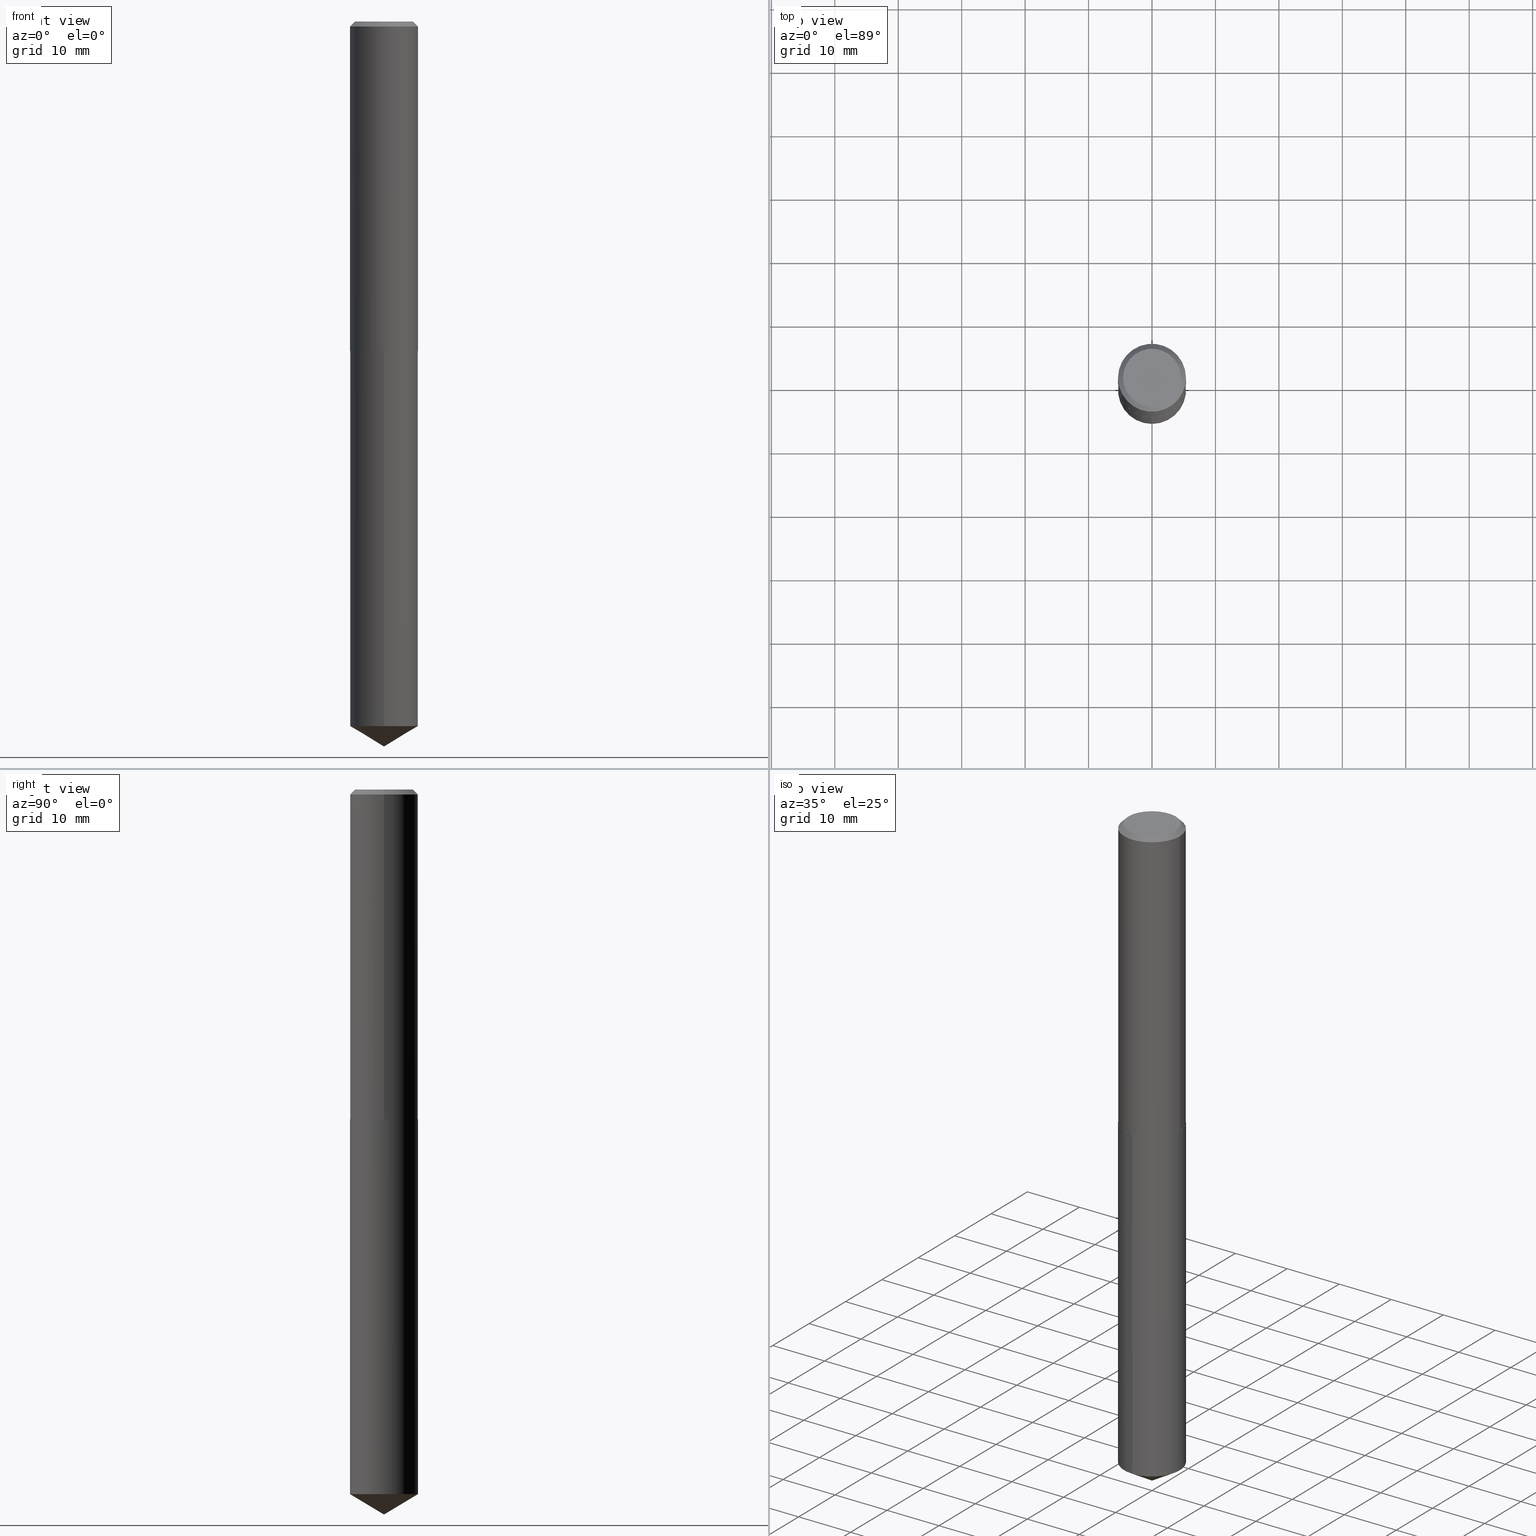
[diagram: canonical four-view strip — front | top / right | iso, engineering-drawing reading convention]
A machine part, canonical four-view strip (front | top / right | iso — engineering-drawing reading convention). The complete STEP part file that produces these views, byte-faithful:
ISO-10303-21;
HEADER;
FILE_DESCRIPTION (( 'STEP AP203' ),
    '1' );
FILE_NAME ('51127.STEP',
    '2024-04-22T18:33:07',
    ( '' ),
    ( '' ),
    'SwSTEP 2.0',
    'SolidWorks 2023',
    '' );
FILE_SCHEMA (( 'CONFIG_CONTROL_DESIGN' ));
ENDSEC;

DATA;
#1 = LINE ( 'NONE', #167, #223 ) ;
#2 = FACE_OUTER_BOUND ( 'NONE', #159, .T. ) ;
#3 = EDGE_CURVE ( 'NONE', #141, #115, #196, .T. ) ;
#4 = AXIS2_PLACEMENT_3D ( 'NONE', #318, #292, #10 ) ;
#5 = CARTESIAN_POINT ( 'NONE',  ( 5.005630099380355887E-29, -7.146713152478034511E-15, -2.046899999999999942 ) ) ;
#6 = COORDINATED_UNIVERSAL_TIME_OFFSET ( 5, 0, .BEHIND. ) ;
#7 = CARTESIAN_POINT ( 'NONE',  ( -1.473055976857811069E-15, -0.2109500000000152919, -4.373248452416135912 ) ) ;
#8 = EDGE_CURVE ( 'NONE', #144, #141, #328, .T. ) ;
#9 = EDGE_CURVE ( 'NONE', #248, #378, #193, .T. ) ;
#10 = DIRECTION ( 'NONE',  ( 1.000000000000000000, -6.982962677686269077E-15, 0.000000000000000000 ) ) ;
#11 = VECTOR ( 'NONE', #316, 39.37007874015748143 ) ;
#12 = FACE_OUTER_BOUND ( 'NONE', #371, .T. ) ;
#13 = APPROVAL_STATUS ( 'not_yet_approved' ) ;
#14 = ADVANCED_FACE ( 'NONE', ( #2 ), #199, .T. ) ;
#15 = PRODUCT_RELATED_PRODUCT_CATEGORY ( 'detail', '', ( #68 ) ) ;
#16 = LINE ( 'NONE', #376, #88 ) ;
#17 = ORIENTED_EDGE ( 'NONE', *, *, #8, .T. ) ;
#18 = ORIENTED_EDGE ( 'NONE', *, *, #70, .T. ) ;
#19 = CIRCLE ( 'NONE', #301, 0.2109499999999999986 ) ;
#20 = PRODUCT_DEFINITION_FORMATION_WITH_SPECIFIED_SOURCE ( 'ANY', '', #68, .NOT_KNOWN. ) ;
#21 = PRODUCT_DEFINITION ( 'UNKNOWN', '', #20, #352 ) ;
#22 = DIRECTION ( 'NONE',  ( 1.000000000000000000, 0.000000000000000000, 0.000000000000000000 ) ) ;
#23 = PLANE ( 'NONE',  #289 ) ;
#24 = DIRECTION ( 'NONE',  ( 1.000000000000000000, -6.982962677686265922E-15, 4.876199800713087836E-29 ) ) ;
#25 = CONICAL_SURFACE ( 'NONE', #4, 0.2109500000000002207, 0.7853981633980972044 ) ;
#26 = EDGE_CURVE ( 'NONE', #141, #148, #215, .T. ) ;
#27 = FACE_OUTER_BOUND ( 'NONE', #319, .T. ) ;
#28 = CARTESIAN_POINT ( 'NONE',  ( 5.005630099380355887E-29, -7.146713152478034511E-15, -2.046899999999999942 ) ) ;
#29 = CARTESIAN_POINT ( 'NONE',  ( 1.100458722092953583E-28, -1.571170122342283263E-14, -4.500000000000000000 ) ) ;
#30 = AXIS2_PLACEMENT_3D ( 'NONE', #191, #382, #24 ) ;
#31 = AXIS2_PLACEMENT_3D ( 'NONE', #134, #286, #202 ) ;
#32 = CIRCLE ( 'NONE', #137, 0.2109499999999999986 ) ;
#33 = CYLINDRICAL_SURFACE ( 'NONE', #261, 0.2109499999999999986 ) ;
#34 = EDGE_CURVE ( 'NONE', #48, #248, #62, .T. ) ;
#35 = DIRECTION ( 'NONE',  ( 1.000000000000000000, -6.982962677686266711E-15, 0.000000000000000000 ) ) ;
#36 = VECTOR ( 'NONE', #256, 39.37007874015748143 ) ;
#37 = LOCAL_TIME ( 14, 33, 7.000000000000000000, #56 ) ;
#38 =( LENGTH_UNIT ( ) NAMED_UNIT ( * ) SI_UNIT ( $, .METRE. ) );
#39 = APPROVAL ( #373, 'UNSPECIFIED' ) ;
#40 = PERSON_AND_ORGANIZATION ( #127, #165 ) ;
#41 = ORIENTED_EDGE ( 'NONE', *, *, #131, .T. ) ;
#42 = CARTESIAN_POINT ( 'NONE',  ( -0.2109500000000001096, 1.498889901085932121E-15, -1.037649357289272942E-29 ) ) ;
#43 = PERSON_AND_ORGANIZATION ( #127, #165 ) ;
#44 = CARTESIAN_POINT ( 'NONE',  ( 0.2109499999999999986, -1.556330844468753687E-15, -0.03125000000000020123 ) ) ;
#45 = DIRECTION ( 'NONE',  ( -5.985567269335949957E-15, -0.8571673007021116675, 0.5150380749100553768 ) ) ;
#46 = CONICAL_SURFACE ( 'NONE', #186, 0.2109500000000002207, 0.7853981633980972044 ) ;
#47 = LOCAL_TIME ( 14, 33, 7.000000000000000000, #351 ) ;
#48 = VERTEX_POINT ( 'NONE', #279 ) ;
#49 = ADVANCED_FACE ( 'NONE', ( #121 ), #23, .F. ) ;
#50 = APPROVAL_ROLE ( '' ) ;
#51 = PERSON_AND_ORGANIZATION_ROLE ( 'design_owner' ) ;
#52 = ORIENTED_EDGE ( 'NONE', *, *, #354, .T. ) ;
#53 = CALENDAR_DATE ( 2024, 22, 4 ) ;
#54 = APPROVAL_STATUS ( 'not_yet_approved' ) ;
#55 = EDGE_LOOP ( 'NONE', ( #346, #317, #315, #205 ) ) ;
#56 = COORDINATED_UNIVERSAL_TIME_OFFSET ( 5, 0, .BEHIND. ) ;
#57 = ADVANCED_FACE ( 'NONE', ( #277 ), #387, .F. ) ;
#58 = ORIENTED_EDGE ( 'NONE', *, *, #26, .F. ) ;
#59 = DIRECTION ( 'NONE',  ( -0.7071067811865453523, 2.468850131082234184E-15, -0.7071067811865496822 ) ) ;
#60 = DIRECTION ( 'NONE',  ( -2.445468806185136597E-29, 3.491481338843145583E-15, 1.000000000000000000 ) ) ;
#61 = DIRECTION ( 'NONE',  ( -2.445408296409078411E-29, 3.491567992286463657E-15, 1.000000000000000000 ) ) ;
#62 = CIRCLE ( 'NONE', #30, 0.1796999999999999986 ) ;
#63 = CC_DESIGN_DATE_AND_TIME_ASSIGNMENT ( #118, #267, ( #21 ) ) ;
#64 = DIRECTION ( 'NONE',  ( -2.445468806185136597E-29, 3.491481338843145583E-15, 1.000000000000000000 ) ) ;
#65 = AXIS2_PLACEMENT_3D ( 'NONE', #327, #388, #126 ) ;
#66 = DIRECTION ( 'NONE',  ( -0.7071067811870063169, 7.493145998872012346E-15, 0.7071067811860887176 ) ) ;
#67 = CARTESIAN_POINT ( 'NONE',  ( 0.000000000000000000, 0.000000000000000000, 0.000000000000000000 ) ) ;
#68 = PRODUCT ( '51127', '51127', '', ( #334 ) ) ;
#69 = ORIENTED_EDGE ( 'NONE', *, *, #309, .T. ) ;
#70 = EDGE_CURVE ( 'NONE', #248, #48, #71, .T. ) ;
#71 = CIRCLE ( 'NONE', #360, 0.1796999999999999986 ) ;
#72 = CC_DESIGN_SECURITY_CLASSIFICATION ( #278, ( #20 ) ) ;
#73 = EDGE_LOOP ( 'NONE', ( #300, #116, #58 ) ) ;
#74 = APPLICATION_CONTEXT ( 'configuration controlled 3d designs of mechanical parts and assemblies' ) ;
#75 = ORIENTED_EDGE ( 'NONE', *, *, #172, .F. ) ;
#76 = ORIENTED_EDGE ( 'NONE', *, *, #201, .T. ) ;
#77 = ORIENTED_EDGE ( 'NONE', *, *, #359, .F. ) ;
#78 = CALENDAR_DATE ( 2024, 22, 4 ) ;
#79 = AXIS2_PLACEMENT_3D ( 'NONE', #323, #61, #92 ) ;
#80 = CARTESIAN_POINT ( 'NONE',  ( 1.498889901085981031E-15, 0.2109499999999928654, -2.046900000000000830 ) ) ;
#81 = DIRECTION ( 'NONE',  ( -2.445408296409078411E-29, 3.491567992286463657E-15, 1.000000000000000000 ) ) ;
#82 = DIRECTION ( 'NONE',  ( 2.445408296409077850E-29, -3.491567992286463657E-15, -1.000000000000000000 ) ) ;
#83 = DIRECTION ( 'NONE',  ( -2.445468806185136597E-29, 3.491481338843145583E-15, 1.000000000000000000 ) ) ;
#84 = ORIENTED_EDGE ( 'NONE', *, *, #348, .F. ) ;
#85 = EDGE_CURVE ( 'NONE', #378, #154, #310, .T. ) ;
#86 = DIRECTION ( 'NONE',  ( -6.982962677686266711E-15, -1.000000000000000000, 3.468864327941578437E-15 ) ) ;
#87 = ORIENTED_EDGE ( 'NONE', *, *, #3, .T. ) ;
#88 = VECTOR ( 'NONE', #45, 39.37007874015748143 ) ;
#89 = LOCAL_TIME ( 14, 33, 7.000000000000000000, #147 ) ;
#90 = CARTESIAN_POINT ( 'NONE',  ( -1.473055976857867670E-15, -0.2109500000000071318, -2.046899999999999054 ) ) ;
#91 = DIRECTION ( 'NONE',  ( -2.445408296409078411E-29, 3.491567992286463657E-15, 1.000000000000000000 ) ) ;
#92 = DIRECTION ( 'NONE',  ( -6.982962677686265922E-15, -1.000000000000000000, 2.590043132177542855E-15 ) ) ;
#93 = CC_DESIGN_PERSON_AND_ORGANIZATION_ASSIGNMENT ( #342, #51, ( #68 ) ) ;
#94 = DIRECTION ( 'NONE',  ( 0.7071067811870063169, -2.468850131087062801E-15, 0.7071067811860887176 ) ) ;
#95 = CARTESIAN_POINT ( 'NONE',  ( 1.498889901086038617E-15, 0.2109499999999928654, -2.046900000000000830 ) ) ;
#96 = APPLICATION_CONTEXT ( 'configuration controlled 3d designs of mechanical parts and assemblies' ) ;
#97 = AXIS2_PLACEMENT_3D ( 'NONE', #200, #197, #99 ) ;
#98 = LOCAL_TIME ( 14, 33, 7.000000000000000000, #6 ) ;
#99 = DIRECTION ( 'NONE',  ( -6.982962677686265922E-15, -1.000000000000000000, 3.885064698266314085E-15 ) ) ;
#100 = EDGE_CURVE ( 'NONE', #148, #141, #19, .T. ) ;
#101 = MANIFOLD_SOLID_BREP ( 'Body-Move/Copy2[1]', #264 ) ;
#102 = CARTESIAN_POINT ( 'NONE',  ( 5.005630099380354766E-29, -7.146713152478032933E-15, -2.046899999999999498 ) ) ;
#103 = VECTOR ( 'NONE', #66, 39.37007874015748143 ) ;
#104 = APPROVAL_PERSON_ORGANIZATION ( #43, #288, #249 ) ;
#105 = ORIENTED_EDGE ( 'NONE', *, *, #131, .F. ) ;
#106 = DATE_AND_TIME ( #53, #47 ) ;
#107 = ORIENTED_EDGE ( 'NONE', *, *, #280, .F. ) ;
#108 = EDGE_CURVE ( 'NONE', #182, #194, #294, .T. ) ;
#109 = PERSON_AND_ORGANIZATION_ROLE ( 'classification_officer' ) ;
#110 = CARTESIAN_POINT ( 'NONE',  ( 0.2109500000000002207, -8.618023388666532939E-15, -2.046400000000000219 ) ) ;
#111 = ORIENTED_EDGE ( 'NONE', *, *, #216, .T. ) ;
#112 = DATE_TIME_ROLE ( 'classification_date' ) ;
#113 = ORIENTED_EDGE ( 'NONE', *, *, #348, .T. ) ;
#114 = CIRCLE ( 'NONE', #176, 0.2104500000000002202 ) ;
#115 = VERTEX_POINT ( 'NONE', #95 ) ;
#116 = ORIENTED_EDGE ( 'NONE', *, *, #172, .T. ) ;
#117 = DIRECTION ( 'NONE',  ( 0.7071067811865453523, -7.319954787623248157E-15, -0.7071067811865496822 ) ) ;
#118 = DATE_AND_TIME ( #384, #233 ) ;
#119 =( CONVERSION_BASED_UNIT ( 'INCH', #150 ) LENGTH_UNIT ( ) NAMED_UNIT ( #228 ) );
#120 = PERSON_AND_ORGANIZATION ( #127, #165 ) ;
#121 = FACE_OUTER_BOUND ( 'NONE', #341, .T. ) ;
#122 = CARTESIAN_POINT ( 'NONE',  ( -0.2109500000000002207, -5.646077510722680294E-15, -2.046400000000000219 ) ) ;
#123 = DATE_AND_TIME ( #162, #98 ) ;
#124 = CIRCLE ( 'NONE', #344, 0.2109500000000002207 ) ;
#125 = CARTESIAN_POINT ( 'NONE',  ( 5.005630099380355887E-29, -7.146713152478034511E-15, -2.046899999999999942 ) ) ;
#126 = DIRECTION ( 'NONE',  ( -1.000000000000000000, 6.982962677686265922E-15, -4.876176775795935793E-29 ) ) ;
#127 = PERSON ( 'UNSPECIFIED', 'UNSPECIFIED', 'UNSPECIFIED', ('UNSPECIFIED'), ('UNSPECIFIED'), ('UNSPECIFIED') ) ;
#128 = CARTESIAN_POINT ( 'NONE',  ( 7.642090019328600035E-31, -1.091087918388489897E-16, -0.03125000000000020123 ) ) ;
#129 = ORIENTED_EDGE ( 'NONE', *, *, #229, .T. ) ;
#130 = CARTESIAN_POINT ( 'NONE',  ( 7.642090019328600035E-31, -1.091087918388489897E-16, -0.03125000000000020123 ) ) ;
#131 = EDGE_CURVE ( 'NONE', #184, #252, #124, .T. ) ;
#132 = CONICAL_SURFACE ( 'NONE', #153, 0.2109499999999999986, 0.7853981633974452814 ) ;
#133 = DIRECTION ( 'NONE',  ( -2.445408296409078411E-29, 3.491567992286463657E-15, 1.000000000000000000 ) ) ;
#134 = CARTESIAN_POINT ( 'NONE',  ( 5.004407364977263646E-29, -7.144967411808613796E-15, -2.046400000000000219 ) ) ;
#135 = PERSON_AND_ORGANIZATION ( #127, #165 ) ;
#136 = AXIS2_PLACEMENT_3D ( 'NONE', #102, #64, #35 ) ;
#137 = AXIS2_PLACEMENT_3D ( 'NONE', #381, #190, #251 ) ;
#138 = EDGE_CURVE ( 'NONE', #115, #353, #335, .T. ) ;
#139 = DIRECTION ( 'NONE',  ( -2.445468806185136597E-29, 3.491481338843145583E-15, 1.000000000000000000 ) ) ;
#140 = ORIENTED_EDGE ( 'NONE', *, *, #138, .F. ) ;
#141 = VERTEX_POINT ( 'NONE', #235 ) ;
#142 = ADVANCED_FACE ( 'NONE', ( #258 ), #291, .T. ) ;
#143 = AXIS2_PLACEMENT_3D ( 'NONE', #5, #287, #332 ) ;
#144 = VERTEX_POINT ( 'NONE', #168 ) ;
#145 = DIRECTION ( 'NONE',  ( 1.000000000000000000, -6.982962677686266711E-15, 0.000000000000000000 ) ) ;
#146 = ORIENTED_EDGE ( 'NONE', *, *, #201, .F. ) ;
#147 = COORDINATED_UNIVERSAL_TIME_OFFSET ( 5, 0, .BEHIND. ) ;
#148 = VERTEX_POINT ( 'NONE', #7 ) ;
#149 = LINE ( 'NONE', #44, #283 ) ;
#150 = LENGTH_MEASURE_WITH_UNIT ( LENGTH_MEASURE( 0.02539999999999999897 ), #38 );
#151 = LINE ( 'NONE', #271, #11 ) ;
#152 = AXIS2_PLACEMENT_3D ( 'NONE', #125, #82, #218 ) ;
#153 = AXIS2_PLACEMENT_3D ( 'NONE', #386, #285, #304 ) ;
#154 = VERTEX_POINT ( 'NONE', #169 ) ;
#155 = DIRECTION ( 'NONE',  ( -2.438088387897960049E-29, 3.491481338843145188E-15, 1.000000000000000000 ) ) ;
#156 = AXIS2_PLACEMENT_3D ( 'NONE', #181, #276, #324 ) ;
#157 = DIRECTION ( 'NONE',  ( 1.000000000000000000, -6.982962677686265922E-15, 4.876176775795935793E-29 ) ) ;
#158 = APPROVAL_PERSON_ORGANIZATION ( #214, #39, #245 ) ;
#159 = EDGE_LOOP ( 'NONE', ( #350, #129, #220, #208 ) ) ;
#160 = ADVANCED_FACE ( 'NONE', ( #234 ), #46, .T. ) ;
#161 = DIRECTION ( 'NONE',  ( -2.445468806185136597E-29, 3.491481338843145583E-15, 1.000000000000000000 ) ) ;
#162 = CALENDAR_DATE ( 2024, 22, 4 ) ;
#163 = FACE_OUTER_BOUND ( 'NONE', #321, .T. ) ;
#164 = VECTOR ( 'NONE', #59, 39.37007874015748143 ) ;
#165 = ORGANIZATION ( 'UNSPECIFIED', 'UNSPECIFIED', '' ) ;
#166 = COORDINATED_UNIVERSAL_TIME_OFFSET ( 5, 0, .BEHIND. ) ;
#167 = CARTESIAN_POINT ( 'NONE',  ( 0.2109500000000002207, -8.618023388666532939E-15, -2.046400000000000219 ) ) ;
#168 = CARTESIAN_POINT ( 'NONE',  ( 1.100433733384085159E-28, -1.571205596528908744E-14, -4.500000000000000000 ) ) ;
#169 = CARTESIAN_POINT ( 'NONE',  ( 0.2109499999999999986, -1.582164768696767060E-15, -0.03125000000000020123 ) ) ;
#170 = CIRCLE ( 'NONE', #232, 0.2109499999999999986 ) ;
#171 = CARTESIAN_POINT ( 'NONE',  ( 5.004407364977263646E-29, -7.144967411808613796E-15, -2.046400000000000219 ) ) ;
#172 = EDGE_CURVE ( 'NONE', #144, #148, #16, .T. ) ;
#173 = EDGE_LOOP ( 'NONE', ( #240, #113, #76, #338 ) ) ;
#174 = SHAPE_DEFINITION_REPRESENTATION ( #237, #224 ) ;
#175 = CARTESIAN_POINT ( 'NONE',  ( -0.1796999999999999986, 1.309392789099645492E-15, 9.613477373217108669E-19 ) ) ;
#176 = AXIS2_PLACEMENT_3D ( 'NONE', #365, #259, #145 ) ;
#177 = APPROVAL_DATE_TIME ( #123, #336 ) ;
#178 = AXIS2_PLACEMENT_3D ( 'NONE', #325, #83, #222 ) ;
#179 = EDGE_LOOP ( 'NONE', ( #18, #254 ) ) ;
#180 = EDGE_LOOP ( 'NONE', ( #111, #298, #105, #246 ) ) ;
#181 = CARTESIAN_POINT ( 'NONE',  ( -8.527145599015831561E-28, 1.217514281885756788E-13, 34.87007874015748143 ) ) ;
#182 = VERTEX_POINT ( 'NONE', #345 ) ;
#183 = DIRECTION ( 'NONE',  ( -2.445468806185136597E-29, 3.491481338843145583E-15, 1.000000000000000000 ) ) ;
#184 = VERTEX_POINT ( 'NONE', #110 ) ;
#185 = UNCERTAINTY_MEASURE_WITH_UNIT (LENGTH_MEASURE( 1.000000000000000082E-05 ), #119, 'distance_accuracy_value', 'NONE');
#186 = AXIS2_PLACEMENT_3D ( 'NONE', #343, #183, #239 ) ;
#187 = VECTOR ( 'NONE', #81, 39.37007874015748143 ) ;
#188 = ORIENTED_EDGE ( 'NONE', *, *, #211, .T. ) ;
#189 = DIRECTION ( 'NONE',  ( 0.000000000000000000, 0.000000000000000000, 1.000000000000000000 ) ) ;
#190 = DIRECTION ( 'NONE',  ( -2.445408296409078411E-29, 3.491567992286463657E-15, 1.000000000000000000 ) ) ;
#191 = CARTESIAN_POINT ( 'NONE',  ( -2.350945903538833148E-47, 3.356527685029141157E-33, 9.613477373306770338E-19 ) ) ;
#192 = FACE_OUTER_BOUND ( 'NONE', #179, .T. ) ;
#193 = LINE ( 'NONE', #275, #164 ) ;
#194 = VERTEX_POINT ( 'NONE', #212 ) ;
#195 = APPROVAL_PERSON_ORGANIZATION ( #120, #336, #50 ) ;
#196 = LINE ( 'NONE', #80, #36 ) ;
#197 = DIRECTION ( 'NONE',  ( -2.445408296409078411E-29, 3.491567992286463657E-15, 1.000000000000000000 ) ) ;
#198 = DIRECTION ( 'NONE',  ( 1.000000000000000000, -6.982962677686269077E-15, 0.000000000000000000 ) ) ;
#199 = CONICAL_SURFACE ( 'NONE', #242, 0.2109499999999999986, 0.7853981633974452814 ) ;
#200 = CARTESIAN_POINT ( 'NONE',  ( 5.005630099380355887E-29, -7.146713152478034511E-15, -2.046899999999999942 ) ) ;
#201 = EDGE_CURVE ( 'NONE', #184, #154, #151, .T. ) ;
#202 = DIRECTION ( 'NONE',  ( 1.000000000000000000, -6.982962677686269077E-15, 0.000000000000000000 ) ) ;
#203 = AXIS2_PLACEMENT_3D ( 'NONE', #128, #253, #357 ) ;
#204 = ADVANCED_FACE ( 'NONE', ( #12 ), #25, .T. ) ;
#205 = ORIENTED_EDGE ( 'NONE', *, *, #85, .T. ) ;
#206 = SECURITY_CLASSIFICATION_LEVEL ( 'unclassified' ) ;
#207 = DIRECTION ( 'NONE',  ( 1.000000000000000000, -6.982962677686266711E-15, 4.876176775795935793E-29 ) ) ;
#208 = ORIENTED_EDGE ( 'NONE', *, *, #9, .F. ) ;
#209 = DATE_AND_TIME ( #78, #89 ) ;
#210 = FACE_OUTER_BOUND ( 'NONE', #238, .T. ) ;
#211 = EDGE_CURVE ( 'NONE', #252, #378, #337, .T. ) ;
#212 = CARTESIAN_POINT ( 'NONE',  ( 0.2104500000000002202, -8.616277647997109069E-15, -2.046899999999999498 ) ) ;
#213 =( NAMED_UNIT ( * ) SI_UNIT ( $, .STERADIAN. ) SOLID_ANGLE_UNIT ( ) );
#214 = PERSON_AND_ORGANIZATION ( #127, #165 ) ;
#215 = CIRCLE ( 'NONE', #79, 0.2109499999999999986 ) ;
#216 = EDGE_CURVE ( 'NONE', #194, #182, #114, .T. ) ;
#217 = CC_DESIGN_APPROVAL ( #288, ( #20 ) ) ;
#218 = DIRECTION ( 'NONE',  ( 6.982962677686265922E-15, 1.000000000000000000, -3.491567992286463657E-15 ) ) ;
#219 = APPLICATION_PROTOCOL_DEFINITION ( 'international standard', 'config_control_design', 1994, #74 ) ;
#220 = ORIENTED_EDGE ( 'NONE', *, *, #280, .T. ) ;
#221 = DIRECTION ( 'NONE',  ( 1.000000000000000000, -6.982962677686266711E-15, 0.000000000000000000 ) ) ;
#222 = DIRECTION ( 'NONE',  ( 1.000000000000000000, -6.982962677686266711E-15, 4.876176775795935793E-29 ) ) ;
#223 = VECTOR ( 'NONE', #94, 39.37007874015748143 ) ;
#224 = ADVANCED_BREP_SHAPE_REPRESENTATION ( '51127', ( #101, #244, #225 ), #295 ) ;
#225 = AXIS2_PLACEMENT_3D ( 'NONE', #306, #189, #22 ) ;
#226 = DIRECTION ( 'NONE',  ( -6.982962677686265922E-15, -1.000000000000000000, 3.885064698266314085E-15 ) ) ;
#227 = FACE_OUTER_BOUND ( 'NONE', #73, .T. ) ;
#228 = DIMENSIONAL_EXPONENTS ( 1.000000000000000000, 0.000000000000000000, 0.000000000000000000, 0.000000000000000000, 0.000000000000000000, 0.000000000000000000, 0.000000000000000000 ) ;
#229 = EDGE_CURVE ( 'NONE', #48, #154, #149, .T. ) ;
#230 = PERSON_AND_ORGANIZATION_ROLE ( 'creator' ) ;
#231 = DIRECTION ( 'NONE',  ( -2.445408296409078411E-29, 3.491567992286463657E-15, 1.000000000000000000 ) ) ;
#232 = AXIS2_PLACEMENT_3D ( 'NONE', #356, #161, #221 ) ;
#233 = LOCAL_TIME ( 14, 33, 7.000000000000000000, #166 ) ;
#234 = FACE_OUTER_BOUND ( 'NONE', #180, .T. ) ;
#235 = CARTESIAN_POINT ( 'NONE',  ( 1.498889901086038420E-15, 0.2109499999999847886, -4.373248452416137688 ) ) ;
#236 = VECTOR ( 'NONE', #241, 39.37007874015748143 ) ;
#237 = PRODUCT_DEFINITION_SHAPE ( 'NONE', 'NONE',  #21 ) ;
#238 = EDGE_LOOP ( 'NONE', ( #75, #17, #374 ) ) ;
#239 = DIRECTION ( 'NONE',  ( 1.000000000000000000, -6.982962677686269077E-15, 0.000000000000000000 ) ) ;
#240 = ORIENTED_EDGE ( 'NONE', *, *, #211, .F. ) ;
#241 = DIRECTION ( 'NONE',  ( -2.445468806185136877E-29, 3.491481338843145188E-15, 1.000000000000000000 ) ) ;
#242 = AXIS2_PLACEMENT_3D ( 'NONE', #130, #362, #355 ) ;
#243 = ORIENTED_EDGE ( 'NONE', *, *, #3, .F. ) ;
#244 = MANIFOLD_SOLID_BREP ( 'Body-Move/Copy2[2]', #305 ) ;
#245 = APPROVAL_ROLE ( '' ) ;
#246 = ORIENTED_EDGE ( 'NONE', *, *, #309, .F. ) ;
#247 =( NAMED_UNIT ( * ) PLANE_ANGLE_UNIT ( ) SI_UNIT ( $, .RADIAN. ) );
#248 = VERTEX_POINT ( 'NONE', #175 ) ;
#249 = APPROVAL_ROLE ( '' ) ;
#250 = ADVANCED_FACE ( 'NONE', ( #210 ), #389, .T. ) ;
#251 = DIRECTION ( 'NONE',  ( -6.982962677686265922E-15, -1.000000000000000000, 3.885064698266314085E-15 ) ) ;
#252 = VERTEX_POINT ( 'NONE', #122 ) ;
#253 = DIRECTION ( 'NONE',  ( -2.445468806185136597E-29, 3.491481338843145583E-15, 1.000000000000000000 ) ) ;
#254 = ORIENTED_EDGE ( 'NONE', *, *, #34, .T. ) ;
#255 = VECTOR ( 'NONE', #307, 39.37007874015748854 ) ;
#256 = DIRECTION ( 'NONE',  ( -2.445408296409078411E-29, 3.491567992286463657E-15, 1.000000000000000000 ) ) ;
#257 = CC_DESIGN_APPROVAL ( #39, ( #278 ) ) ;
#258 = FACE_OUTER_BOUND ( 'NONE', #268, .T. ) ;
#259 = DIRECTION ( 'NONE',  ( -2.445468806185136597E-29, 3.491481338843145583E-15, 1.000000000000000000 ) ) ;
#260 = CARTESIAN_POINT ( 'NONE',  ( -0.2109499999999999986, -2.128148200737798736E-15, -0.03125000000000020123 ) ) ;
#261 = AXIS2_PLACEMENT_3D ( 'NONE', #28, #91, #226 ) ;
#262 = ORIENTED_EDGE ( 'NONE', *, *, #108, .T. ) ;
#263 = ORIENTED_EDGE ( 'NONE', *, *, #290, .F. ) ;
#264 = CLOSED_SHELL ( 'NONE', ( #142, #250, #329, #333, #57 ) ) ;
#265 = ORIENTED_EDGE ( 'NONE', *, *, #100, .T. ) ;
#266 = ORIENTED_EDGE ( 'NONE', *, *, #26, .T. ) ;
#267 = DATE_TIME_ROLE ( 'creation_date' ) ;
#268 = EDGE_LOOP ( 'NONE', ( #265, #87, #293, #77 ) ) ;
#269 = PERSON_AND_ORGANIZATION ( #127, #165 ) ;
#270 = CIRCLE ( 'NONE', #31, 0.2109500000000002207 ) ;
#271 = CARTESIAN_POINT ( 'NONE',  ( 0.2109500000000001096, -1.473055976857918748E-15, 1.028629490854153189E-29 ) ) ;
#272 = ORIENTED_EDGE ( 'NONE', *, *, #138, .T. ) ;
#273 = ADVANCED_FACE ( 'NONE', ( #192 ), #303, .F. ) ;
#274 = APPROVAL_DATE_TIME ( #106, #288 ) ;
#275 = CARTESIAN_POINT ( 'NONE',  ( -0.2109499999999999986, 1.363947185019068859E-15, -0.03125000000000020123 ) ) ;
#276 = DIRECTION ( 'NONE',  ( -2.445408296409078411E-29, 3.491567992286463657E-15, 1.000000000000000000 ) ) ;
#277 = FACE_OUTER_BOUND ( 'NONE', #372, .T. ) ;
#278 = SECURITY_CLASSIFICATION ( '', '', #206 ) ;
#279 = CARTESIAN_POINT ( 'NONE',  ( 0.1796999999999999986, -1.394581167334149153E-15, 9.613477373399407568E-19 ) ) ;
#280 = EDGE_CURVE ( 'NONE', #154, #378, #170, .T. ) ;
#281 = CC_DESIGN_PERSON_AND_ORGANIZATION_ASSIGNMENT ( #40, #109, ( #278 ) ) ;
#282 = ORIENTED_EDGE ( 'NONE', *, *, #108, .F. ) ;
#283 = VECTOR ( 'NONE', #117, 39.37007874015748143 ) ;
#284 = CC_DESIGN_PERSON_AND_ORGANIZATION_ASSIGNMENT ( #135, #230, ( #21 ) ) ;
#285 = DIRECTION ( 'NONE',  ( 2.445468806185136597E-29, -3.491481338843145583E-15, -1.000000000000000000 ) ) ;
#286 = DIRECTION ( 'NONE',  ( -2.445468806185136597E-29, 3.491481338843145583E-15, 1.000000000000000000 ) ) ;
#287 = DIRECTION ( 'NONE',  ( -2.445408296409078411E-29, 3.491567992286463657E-15, 1.000000000000000000 ) ) ;
#288 = APPROVAL ( #13, 'UNSPECIFIED' ) ;
#289 = AXIS2_PLACEMENT_3D ( 'NONE', #302, #155, #157 ) ;
#290 = EDGE_CURVE ( 'NONE', #182, #252, #358, .T. ) ;
#291 = CYLINDRICAL_SURFACE ( 'NONE', #97, 0.2109499999999999986 ) ;
#292 = DIRECTION ( 'NONE',  ( -2.445468806185136597E-29, 3.491481338843145583E-15, 1.000000000000000000 ) ) ;
#293 = ORIENTED_EDGE ( 'NONE', *, *, #354, .F. ) ;
#294 = CIRCLE ( 'NONE', #136, 0.2104500000000002202 ) ;
#295 =( GEOMETRIC_REPRESENTATION_CONTEXT ( 3 ) GLOBAL_UNCERTAINTY_ASSIGNED_CONTEXT ( ( #185 ) ) GLOBAL_UNIT_ASSIGNED_CONTEXT ( ( #119, #247, #213 ) ) REPRESENTATION_CONTEXT ( 'NONE', 'WORKASPACE' ) );
#296 = ORIENTED_EDGE ( 'NONE', *, *, #216, .F. ) ;
#297 = CC_DESIGN_PERSON_AND_ORGANIZATION_ASSIGNMENT ( #269, #339, ( #20 ) ) ;
#298 = ORIENTED_EDGE ( 'NONE', *, *, #290, .T. ) ;
#299 = CALENDAR_DATE ( 2024, 22, 4 ) ;
#300 = ORIENTED_EDGE ( 'NONE', *, *, #8, .F. ) ;
#301 = AXIS2_PLACEMENT_3D ( 'NONE', #314, #231, #313 ) ;
#302 = CARTESIAN_POINT ( 'NONE',  ( 6.861057420538922349E-29, -4.489635624214135306E-15, -2.046899999999999498 ) ) ;
#303 = PLANE ( 'NONE',  #65 ) ;
#304 = DIRECTION ( 'NONE',  ( -1.000000000000000000, 6.982962677686266711E-15, 0.000000000000000000 ) ) ;
#305 = CLOSED_SHELL ( 'NONE', ( #14, #367, #160, #49, #204, #383, #377, #273 ) ) ;
#306 = CARTESIAN_POINT ( 'NONE',  ( 0.000000000000000000, 0.000000000000000000, 0.000000000000000000 ) ) ;
#307 = DIRECTION ( 'NONE',  ( 6.090539988449787113E-15, 0.8571673007021152202, 0.5150380749100493816 ) ) ;
#308 = CYLINDRICAL_SURFACE ( 'NONE', #178, 0.2109500000000001096 ) ;
#309 = EDGE_CURVE ( 'NONE', #194, #184, #1, .T. ) ;
#310 = CIRCLE ( 'NONE', #203, 0.2109499999999999986 ) ;
#311 = CC_DESIGN_DATE_AND_TIME_ASSIGNMENT ( #209, #112, ( #278 ) ) ;
#312 = CARTESIAN_POINT ( 'NONE',  ( -8.527145599015831561E-28, 1.217514281885756788E-13, 34.87007874015748143 ) ) ;
#313 = DIRECTION ( 'NONE',  ( -6.982962677686265922E-15, -1.000000000000000000, 2.590043132177542855E-15 ) ) ;
#314 = CARTESIAN_POINT ( 'NONE',  ( 1.069450190525719533E-28, -1.526931694783936594E-14, -4.373248452416136800 ) ) ;
#315 = ORIENTED_EDGE ( 'NONE', *, *, #9, .T. ) ;
#316 = DIRECTION ( 'NONE',  ( -2.445468806185136877E-29, 3.491481338843145188E-15, 1.000000000000000000 ) ) ;
#317 = ORIENTED_EDGE ( 'NONE', *, *, #70, .F. ) ;
#318 = CARTESIAN_POINT ( 'NONE',  ( 5.004407364977263646E-29, -7.144967411808613796E-15, -2.046400000000000219 ) ) ;
#319 = EDGE_LOOP ( 'NONE', ( #41, #188, #107, #146 ) ) ;
#320 = APPROVAL_DATE_TIME ( #347, #39 ) ;
#321 = EDGE_LOOP ( 'NONE', ( #243, #266, #368, #140 ) ) ;
#322 = CONICAL_SURFACE ( 'NONE', #366, 65.52281426576873002, 1.029744258676656532 ) ;
#323 = CARTESIAN_POINT ( 'NONE',  ( 1.069450190525719533E-28, -1.526931694783936594E-14, -4.373248452416136800 ) ) ;
#324 = DIRECTION ( 'NONE',  ( -6.982962677686266711E-15, -1.000000000000000000, 3.468864327941578437E-15 ) ) ;
#325 = CARTESIAN_POINT ( 'NONE',  ( 0.000000000000000000, 0.000000000000000000, 0.000000000000000000 ) ) ;
#326 = CARTESIAN_POINT ( 'NONE',  ( -2.350945903538833148E-47, 3.356527685029141157E-33, 9.613477373306770338E-19 ) ) ;
#327 = CARTESIAN_POINT ( 'NONE',  ( -1.175472951769416574E-47, 1.678263842514570579E-33, 4.806738686653385169E-19 ) ) ;
#328 = LINE ( 'NONE', #29, #255 ) ;
#329 = ADVANCED_FACE ( 'NONE', ( #227 ), #322, .T. ) ;
#330 = CARTESIAN_POINT ( 'NONE',  ( -0.2109500000000002207, -5.646077510722680294E-15, -2.046400000000000219 ) ) ;
#331 = AXIS2_PLACEMENT_3D ( 'NONE', #67, #340, #207 ) ;
#332 = DIRECTION ( 'NONE',  ( -6.982962677686265922E-15, -1.000000000000000000, 3.885064698266314085E-15 ) ) ;
#333 = ADVANCED_FACE ( 'NONE', ( #163 ), #33, .T. ) ;
#334 = MECHANICAL_CONTEXT ( 'NONE', #74, 'mechanical' ) ;
#335 = CIRCLE ( 'NONE', #143, 0.2109499999999999986 ) ;
#336 = APPROVAL ( #54, 'UNSPECIFIED' ) ;
#337 = LINE ( 'NONE', #42, #236 ) ;
#338 = ORIENTED_EDGE ( 'NONE', *, *, #85, .F. ) ;
#339 = PERSON_AND_ORGANIZATION_ROLE ( 'creator' ) ;
#340 = DIRECTION ( 'NONE',  ( -2.445468806185136597E-29, 3.491481338843145583E-15, 1.000000000000000000 ) ) ;
#341 = EDGE_LOOP ( 'NONE', ( #296, #282 ) ) ;
#342 = PERSON_AND_ORGANIZATION ( #127, #165 ) ;
#343 = CARTESIAN_POINT ( 'NONE',  ( 5.004407364977263646E-29, -7.144967411808613796E-15, -2.046400000000000219 ) ) ;
#344 = AXIS2_PLACEMENT_3D ( 'NONE', #171, #139, #198 ) ;
#345 = CARTESIAN_POINT ( 'NONE',  ( -0.2104500000000002202, -5.648726737896790707E-15, -2.046899999999999498 ) ) ;
#346 = ORIENTED_EDGE ( 'NONE', *, *, #229, .F. ) ;
#347 = DATE_AND_TIME ( #299, #37 ) ;
#348 = EDGE_CURVE ( 'NONE', #252, #184, #270, .T. ) ;
#349 = CC_DESIGN_PERSON_AND_ORGANIZATION_ASSIGNMENT ( #379, #370, ( #20 ) ) ;
#350 = ORIENTED_EDGE ( 'NONE', *, *, #34, .F. ) ;
#351 = COORDINATED_UNIVERSAL_TIME_OFFSET ( 5, 0, .BEHIND. ) ;
#352 = DESIGN_CONTEXT ( 'detailed design', #96, 'design' ) ;
#353 = VERTEX_POINT ( 'NONE', #385 ) ;
#354 = EDGE_CURVE ( 'NONE', #353, #115, #32, .T. ) ;
#355 = DIRECTION ( 'NONE',  ( -1.000000000000000000, 6.982962677686266711E-15, 0.000000000000000000 ) ) ;
#356 = CARTESIAN_POINT ( 'NONE',  ( 7.642090019328600035E-31, -1.091087918388489897E-16, -0.03125000000000020123 ) ) ;
#357 = DIRECTION ( 'NONE',  ( 1.000000000000000000, -6.982962677686266711E-15, 0.000000000000000000 ) ) ;
#358 = LINE ( 'NONE', #330, #103 ) ;
#359 = EDGE_CURVE ( 'NONE', #148, #353, #361, .T. ) ;
#360 = AXIS2_PLACEMENT_3D ( 'NONE', #326, #60, #390 ) ;
#361 = LINE ( 'NONE', #90, #187 ) ;
#362 = DIRECTION ( 'NONE',  ( 2.445468806185136597E-29, -3.491481338843145583E-15, -1.000000000000000000 ) ) ;
#363 = FACE_OUTER_BOUND ( 'NONE', #173, .T. ) ;
#364 = CYLINDRICAL_SURFACE ( 'NONE', #331, 0.2109500000000001096 ) ;
#365 = CARTESIAN_POINT ( 'NONE',  ( 5.005630099380354766E-29, -7.146713152478032933E-15, -2.046899999999999498 ) ) ;
#366 = AXIS2_PLACEMENT_3D ( 'NONE', #312, #133, #86 ) ;
#367 = ADVANCED_FACE ( 'NONE', ( #27 ), #308, .T. ) ;
#368 = ORIENTED_EDGE ( 'NONE', *, *, #359, .T. ) ;
#369 = CC_DESIGN_APPROVAL ( #336, ( #21 ) ) ;
#370 = PERSON_AND_ORGANIZATION_ROLE ( 'design_supplier' ) ;
#371 = EDGE_LOOP ( 'NONE', ( #263, #262, #69, #84 ) ) ;
#372 = EDGE_LOOP ( 'NONE', ( #52, #272 ) ) ;
#373 = APPROVAL_STATUS ( 'not_yet_approved' ) ;
#374 = ORIENTED_EDGE ( 'NONE', *, *, #100, .F. ) ;
#375 = APPLICATION_PROTOCOL_DEFINITION ( 'international standard', 'config_control_design', 1994, #96 ) ;
#376 = CARTESIAN_POINT ( 'NONE',  ( 1.100433733384085159E-28, -1.571205596528908744E-14, -4.500000000000000000 ) ) ;
#377 = ADVANCED_FACE ( 'NONE', ( #380 ), #132, .T. ) ;
#378 = VERTEX_POINT ( 'NONE', #260 ) ;
#379 = PERSON_AND_ORGANIZATION ( #127, #165 ) ;
#380 = FACE_OUTER_BOUND ( 'NONE', #55, .T. ) ;
#381 = CARTESIAN_POINT ( 'NONE',  ( 5.005630099380355887E-29, -7.146713152478034511E-15, -2.046899999999999942 ) ) ;
#382 = DIRECTION ( 'NONE',  ( -2.445468806185136597E-29, 3.491481338843145583E-15, 1.000000000000000000 ) ) ;
#383 = ADVANCED_FACE ( 'NONE', ( #363 ), #364, .T. ) ;
#384 = CALENDAR_DATE ( 2024, 22, 4 ) ;
#385 = CARTESIAN_POINT ( 'NONE',  ( -1.473055976857867670E-15, -0.2109500000000071318, -2.046899999999999054 ) ) ;
#386 = CARTESIAN_POINT ( 'NONE',  ( 7.642090019328600035E-31, -1.091087918388489897E-16, -0.03125000000000020123 ) ) ;
#387 = PLANE ( 'NONE',  #152 ) ;
#388 = DIRECTION ( 'NONE',  ( 2.438088387897960049E-29, -3.491481338843145188E-15, -1.000000000000000000 ) ) ;
#389 = CONICAL_SURFACE ( 'NONE', #156, 65.52281426576873002, 1.029744258676656532 ) ;
#390 = DIRECTION ( 'NONE',  ( 1.000000000000000000, -6.982962677686265922E-15, 4.876199800713087836E-29 ) ) ;
ENDSEC;
END-ISO-10303-21;
